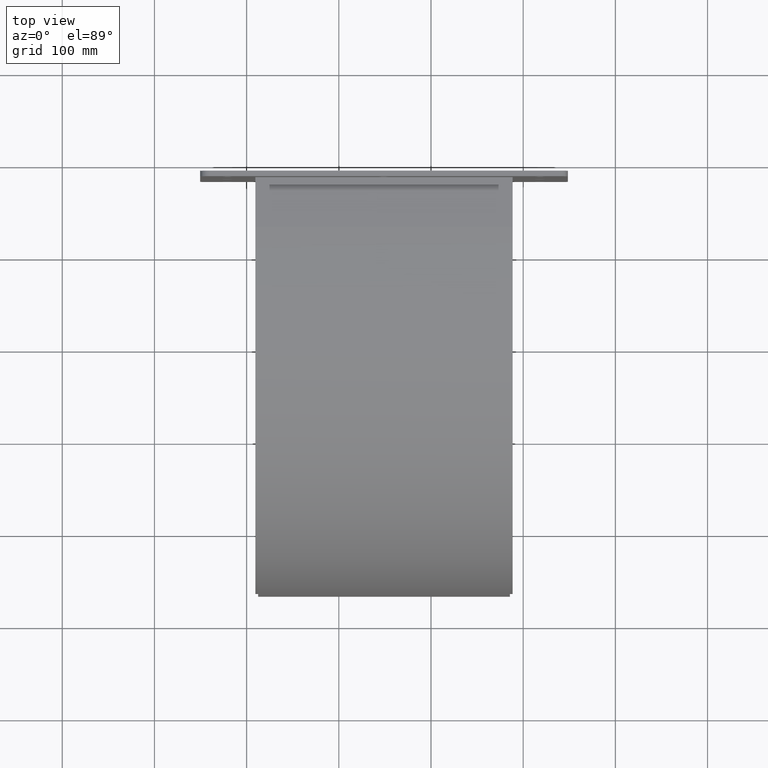
[diagram: clean part render]
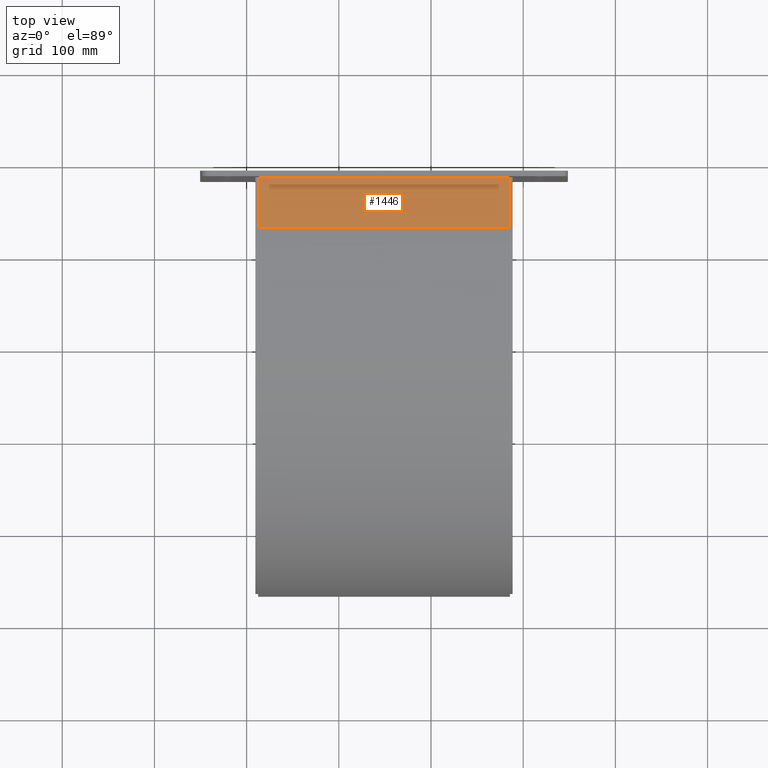
[diagram: same view with one face highlighted and labeled with its STEP entity id]
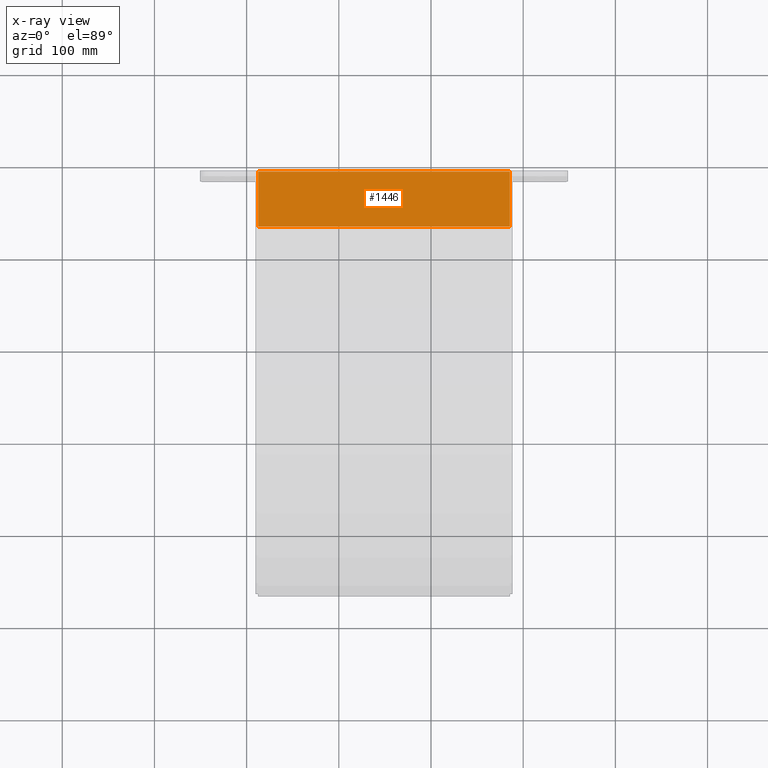
[diagram: x-ray of the same camera — body ghosted, the highlighted face saturated]
A machine part, top view. The second image highlights one B-rep face of the part: STEP entity #1446.
The next image is the same camera in x-ray: the body ghosted, the highlighted face saturated — about 0% of this face is hidden behind the body in this view.
In plain terms, the highlighted planar face has unit normal (0, -0, 1).
Its self-contained STEP definition (entity closure, byte-faithful):
#1390=CARTESIAN_POINT('',(-141.500000000000000,-219.999999999999890,-208.0));
#1391=VERTEX_POINT('',#1390);
#1398=CARTESIAN_POINT('',(131.500000000000000,-219.999999999999890,-208.0));
#1399=VERTEX_POINT('',#1398);
#1400=CARTESIAN_POINT('',(131.500000000000000,-219.999999999999890,-208.0));
#1401=DIRECTION('',(-1.0,0.0,0.0));
#1402=VECTOR('',#1401,273.0);
#1403=LINE('',#1400,#1402);
#1404=EDGE_CURVE('',#1399,#1391,#1403,.T.);
#1416=CARTESIAN_POINT('',(131.500000000000000,-219.999999999999890,-208.0));
#1417=DIRECTION('',(0.0,0.0,-1.0));
#1418=DIRECTION('',(-1.0,0.0,0.0));
#1419=AXIS2_PLACEMENT_3D('',#1416,#1417,#1418);
#1420=PLANE('',#1419);
#1421=CARTESIAN_POINT('',(-141.500000000000000,-160.000000000000110,-207.999999999999550));
#1422=VERTEX_POINT('',#1421);
#1423=CARTESIAN_POINT('',(-141.500000000000000,-219.999999999999890,-208.0));
#1424=DIRECTION('',(0.0,1.0,0.0));
#1425=VECTOR('',#1424,59.999999999999773);
#1426=LINE('',#1423,#1425);
#1427=EDGE_CURVE('',#1391,#1422,#1426,.T.);
#1428=ORIENTED_EDGE('',*,*,#1427,.T.);
#1429=CARTESIAN_POINT('',(131.500000000000000,-160.000000000000110,-207.999999999999550));
#1430=VERTEX_POINT('',#1429);
#1431=CARTESIAN_POINT('',(131.500000000000000,-160.000000000000110,-207.999999999999550));
#1432=DIRECTION('',(-1.0,0.0,0.0));
#1433=VECTOR('',#1432,273.0);
#1434=LINE('',#1431,#1433);
#1435=EDGE_CURVE('',#1430,#1422,#1434,.T.);
#1436=ORIENTED_EDGE('',*,*,#1435,.F.);
#1437=CARTESIAN_POINT('',(131.500000000000000,-160.000000000000110,-207.999999999999550));
#1438=DIRECTION('',(0.0,-1.0,0.0));
#1439=VECTOR('',#1438,59.999999999999773);
#1440=LINE('',#1437,#1439);
#1441=EDGE_CURVE('',#1430,#1399,#1440,.T.);
#1442=ORIENTED_EDGE('',*,*,#1441,.T.);
#1443=ORIENTED_EDGE('',*,*,#1404,.T.);
#1444=EDGE_LOOP('',(#1428,#1436,#1442,#1443));
#1445=FACE_OUTER_BOUND('',#1444,.T.);
#1446=ADVANCED_FACE('',(#1445),#1420,.T.);